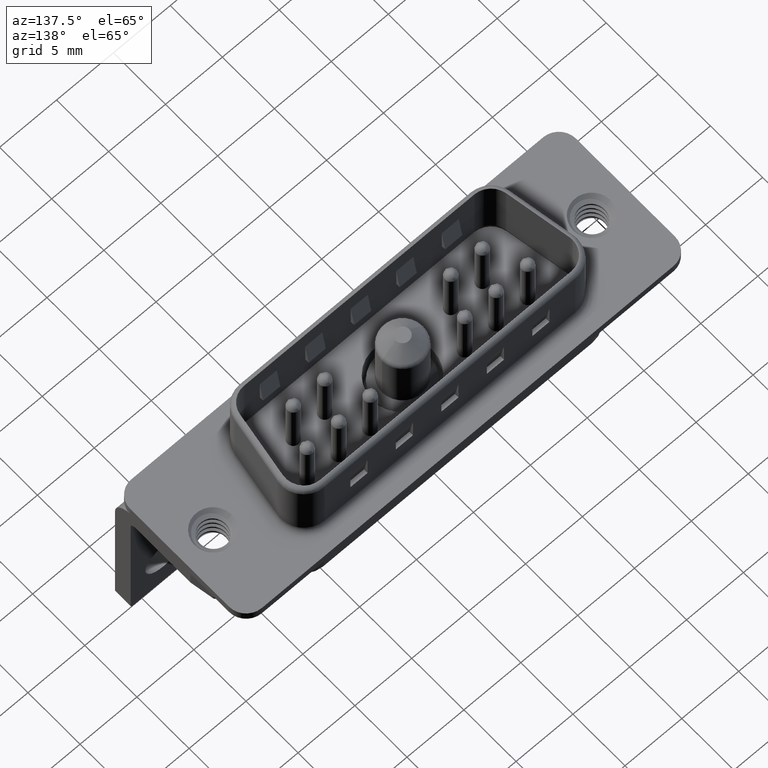
[diagram: clean part render]
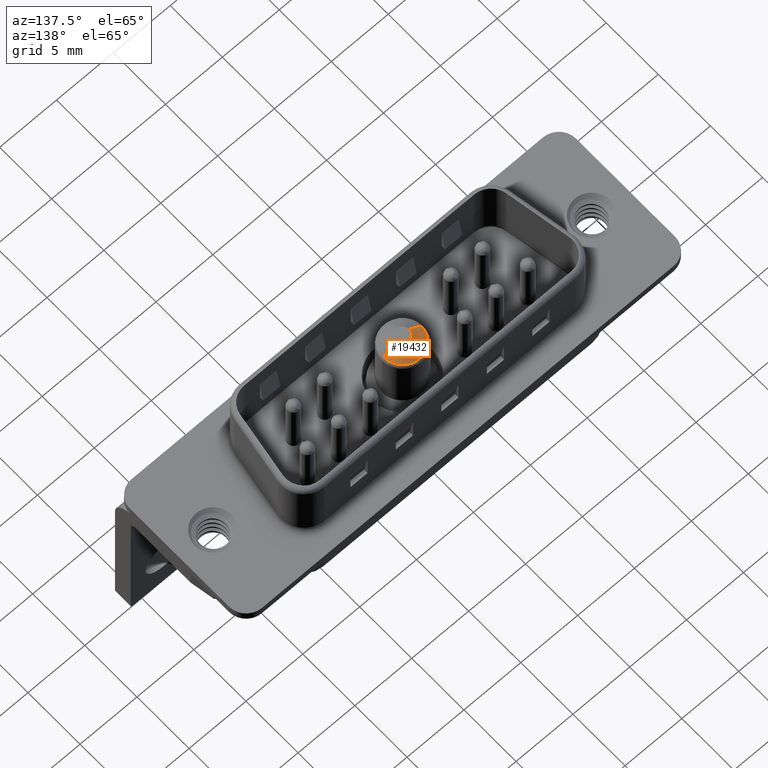
[diagram: same view with one face highlighted and labeled with its STEP entity id]
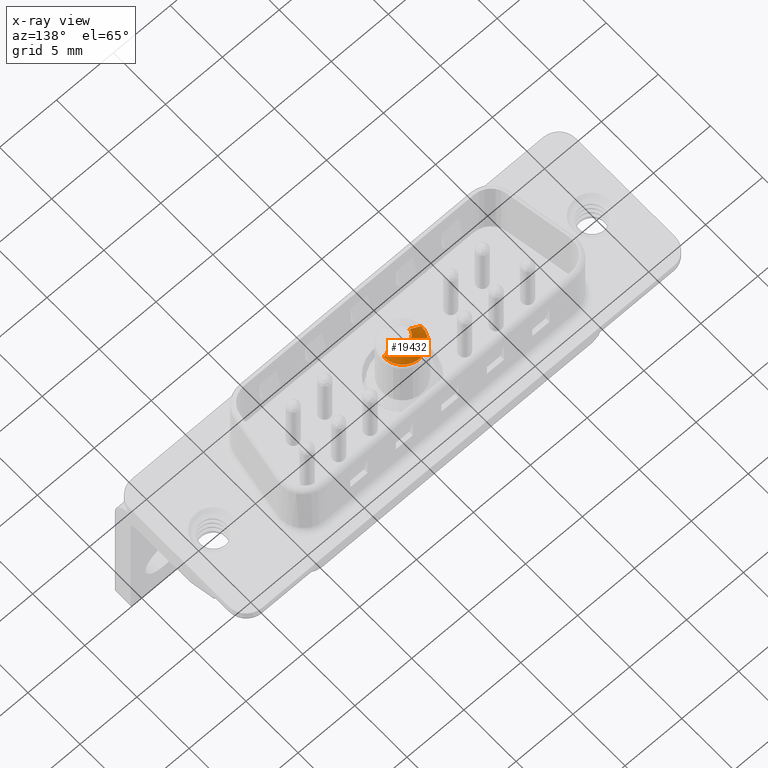
[diagram: x-ray of the same camera — body ghosted, the highlighted face saturated]
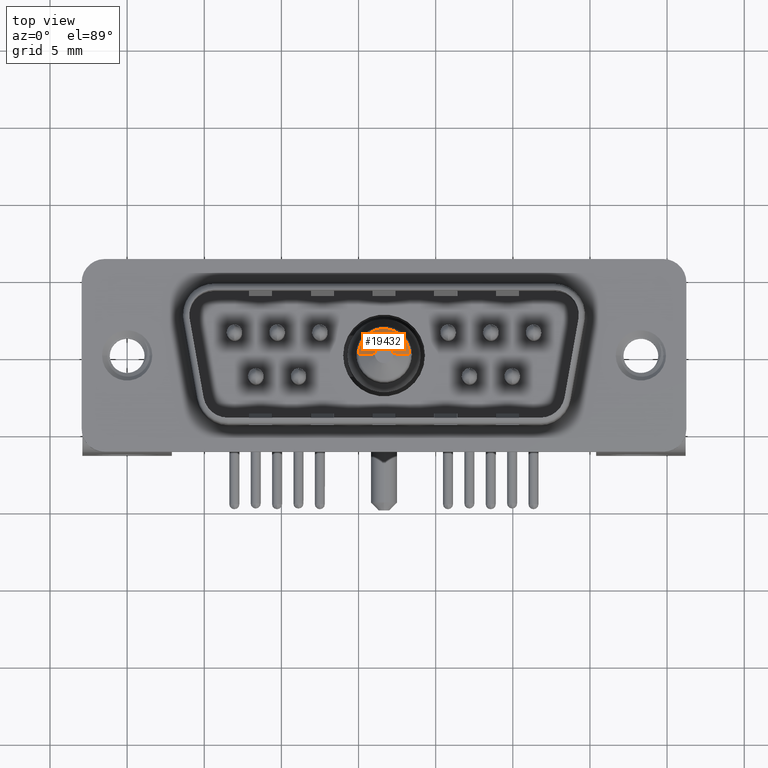
[diagram: same view with one face highlighted and labeled with its STEP entity id]
A machine part, auxiliary view. The second image highlights one B-rep face of the part: STEP entity #19432.
The next image is the same camera in x-ray: the body ghosted, the highlighted face saturated — about 0% of this face is hidden behind the body in this view.
A second angle (top view) of the same face is appended — the face is thin or edge-on in the first view.
In plain terms, the highlighted conical surface has half-angle 45 deg.
Its self-contained STEP definition (entity closure, byte-faithful):
#2 = VERTEX_POINT ( 'NONE', #18506 ) ;
#237 = DIRECTION ( 'NONE',  ( -0.0000000000000000000, -0.0000000000000000000, 1.000000000000000000 ) ) ;
#840 = AXIS2_PLACEMENT_3D ( 'NONE', #21936, #237, #18414 ) ;
#994 = AXIS2_PLACEMENT_3D ( 'NONE', #8506, #22535, #12045 ) ;
#1897 = ORIENTED_EDGE ( 'NONE', *, *, #9789, .F. ) ;
#2105 = CARTESIAN_POINT ( 'NONE',  ( 0.5999999999999999778, 1.379903473248860298E-16, 13.29999999999999893 ) ) ;
#2610 = DIRECTION ( 'NONE',  ( -0.7071067811865441310, 0.0000000000000000000, -0.7071067811865507924 ) ) ;
#3018 = CARTESIAN_POINT ( 'NONE',  ( 0.0000000000000000000, 0.0000000000000000000, 12.24644660940671415 ) ) ;
#4688 = DIRECTION ( 'NONE',  ( 0.7071067811865441310, 8.659560562354892183E-17, -0.7071067811865507924 ) ) ;
#5355 = VECTOR ( 'NONE', #4688, 1000.000000000000114 ) ;
#5670 = EDGE_LOOP ( 'NONE', ( #1897, #13313, #17628, #12925 ) ) ;
#7066 = AXIS2_PLACEMENT_3D ( 'NONE', #3018, #10238, #16141 ) ;
#7932 = CARTESIAN_POINT ( 'NONE',  ( -1.653553390593275552, 0.0000000000000000000, 12.24644660940671415 ) ) ;
#8506 = CARTESIAN_POINT ( 'NONE',  ( 0.0000000000000000000, 0.0000000000000000000, 12.24644660940671415 ) ) ;
#9789 = EDGE_CURVE ( 'NONE', #19146, #22330, #13666, .T. ) ;
#10238 = DIRECTION ( 'NONE',  ( -0.0000000000000000000, -0.0000000000000000000, 1.000000000000000000 ) ) ;
#11490 = VECTOR ( 'NONE', #2610, 1000.000000000000114 ) ;
#11682 = CARTESIAN_POINT ( 'NONE',  ( 1.653553390593275552, 2.025018867009307834E-16, 12.24644660940671415 ) ) ;
#11789 = EDGE_CURVE ( 'NONE', #19146, #17760, #22522, .T. ) ;
#12045 = DIRECTION ( 'NONE',  ( -1.000000000000000000, 0.0000000000000000000, 0.0000000000000000000 ) ) ;
#12925 = ORIENTED_EDGE ( 'NONE', *, *, #21910, .F. ) ;
#13313 = ORIENTED_EDGE ( 'NONE', *, *, #11789, .T. ) ;
#13666 = CIRCLE ( 'NONE', #840, 0.5999999999999999778 ) ;
#15725 = CIRCLE ( 'NONE', #7066, 1.653553390593275552 ) ;
#16141 = DIRECTION ( 'NONE',  ( 1.000000000000000000, 0.0000000000000000000, 0.0000000000000000000 ) ) ;
#17628 = ORIENTED_EDGE ( 'NONE', *, *, #18239, .T. ) ;
#17760 = VERTEX_POINT ( 'NONE', #19226 ) ;
#18239 = EDGE_CURVE ( 'NONE', #17760, #2, #15725, .T. ) ;
#18414 = DIRECTION ( 'NONE',  ( 1.000000000000000000, 0.0000000000000000000, 0.0000000000000000000 ) ) ;
#18506 = CARTESIAN_POINT ( 'NONE',  ( -1.653553390593275774, 2.114691552737272074E-16, 12.24644660940671415 ) ) ;
#18781 = LINE ( 'NONE', #7932, #11490 ) ;
#19095 = CARTESIAN_POINT ( 'NONE',  ( -0.5999999999999999778, 0.0000000000000000000, 13.29999999999999893 ) ) ;
#19146 = VERTEX_POINT ( 'NONE', #2105 ) ;
#19226 = CARTESIAN_POINT ( 'NONE',  ( 1.653553390593275552, 0.0000000000000000000, 12.24644660940671415 ) ) ;
#19432 = ADVANCED_FACE ( 'NONE', ( #21213 ), #21714, .T. ) ;
#21213 = FACE_OUTER_BOUND ( 'NONE', #5670, .T. ) ;
#21714 = CONICAL_SURFACE ( 'NONE', #994, 1.653553390593275552, 0.7853981633974437271 ) ;
#21910 = EDGE_CURVE ( 'NONE', #22330, #2, #18781, .T. ) ;
#21936 = CARTESIAN_POINT ( 'NONE',  ( 0.0000000000000000000, 0.0000000000000000000, 13.29999999999999893 ) ) ;
#22330 = VERTEX_POINT ( 'NONE', #19095 ) ;
#22522 = LINE ( 'NONE', #11682, #5355 ) ;
#22535 = DIRECTION ( 'NONE',  ( 0.0000000000000000000, 0.0000000000000000000, -1.000000000000000000 ) ) ;